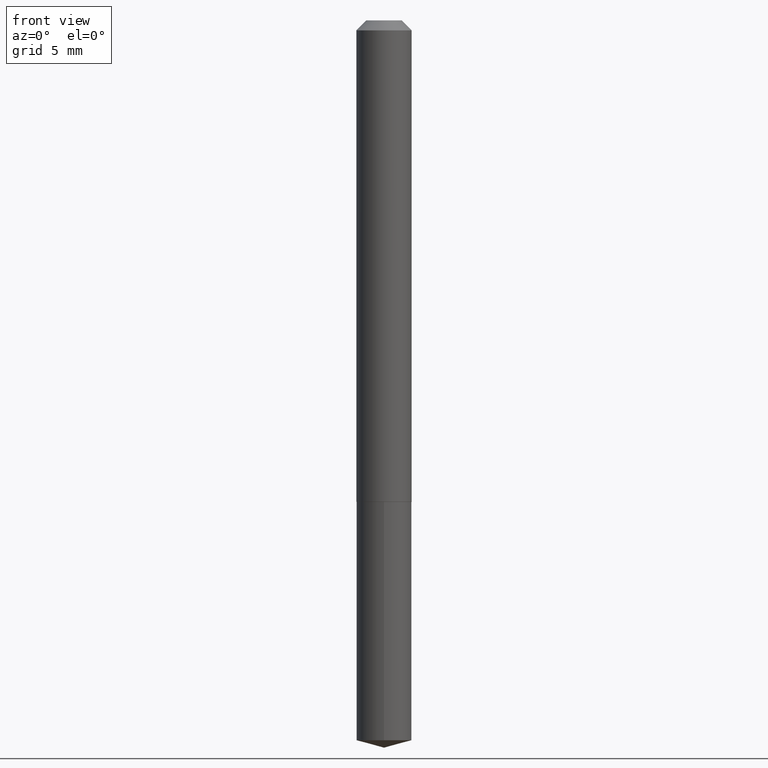
[diagram: clean part render]
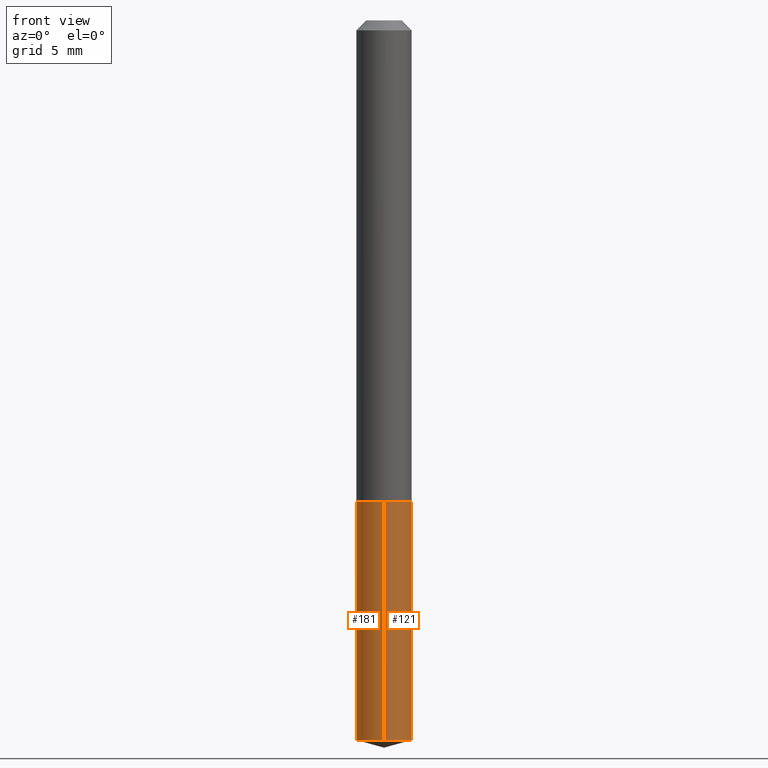
[diagram: same view with one multi-face feature highlighted, each face labeled with its STEP entity id]
A machine part, front view. The highlighted faces form ONE feature: a constant-radius fillet chain: 2 tangent blend faces with common blend radius 2.1996 mm. The faces share edges in the B-rep.
Their STEP definitions:
[1] entity #181 (Cylinder):
#8 = CARTESIAN_POINT ( 'NONE',  ( -6.047245678875748166E-16, -0.08660000000000783738, -2.260295599935465027 ) ) ;
#11 = AXIS2_PLACEMENT_3D ( 'NONE', #312, #340, #140 ) ;
#21 = VERTEX_POINT ( 'NONE', #34 ) ;
#34 = CARTESIAN_POINT ( 'NONE',  ( 6.153300091683016600E-16, 0.08659999999999204445, -2.260295599935465471 ) ) ;
#36 = CARTESIAN_POINT ( 'NONE',  ( -6.047245678875935520E-16, -0.08660000000000526998, -1.511799999999999811 ) ) ;
#37 = CARTESIAN_POINT ( 'NONE',  ( -6.047245678875935520E-16, -0.08660000000000526998, -1.511799999999999811 ) ) ;
#45 = AXIS2_PLACEMENT_3D ( 'NONE', #162, #194, #67 ) ;
#46 = DIRECTION ( 'NONE',  ( -2.445402356682457079E-29, 3.491576498313053365E-15, 1.000000000000000000 ) ) ;
#67 = DIRECTION ( 'NONE',  ( -6.982962677686265922E-15, -1.000000000000000000, 3.154558884138872662E-15 ) ) ;
#75 = ORIENTED_EDGE ( 'NONE', *, *, #151, .T. ) ;
#104 = LINE ( 'NONE', #334, #283 ) ;
#106 = VERTEX_POINT ( 'NONE', #36 ) ;
#116 = ORIENTED_EDGE ( 'NONE', *, *, #204, .F. ) ;
#130 = CIRCLE ( 'NONE', #374, 0.08659999999999998255 ) ;
#138 = ORIENTED_EDGE ( 'NONE', *, *, #331, .T. ) ;
#140 = DIRECTION ( 'NONE',  ( -6.982962677686265922E-15, -1.000000000000000000, 3.154558884138872662E-15 ) ) ;
#150 = VERTEX_POINT ( 'NONE', #197 ) ;
#151 = EDGE_CURVE ( 'NONE', #185, #106, #195, .T. ) ;
#162 = CARTESIAN_POINT ( 'NONE',  ( 3.697059741190689517E-29, -5.278421488063067239E-15, -1.511800000000000033 ) ) ;
#172 = ORIENTED_EDGE ( 'NONE', *, *, #309, .F. ) ;
#181 = ADVANCED_FACE ( 'NONE', ( #247 ), #363, .T. ) ;
#185 = VERTEX_POINT ( 'NONE', #8 ) ;
#194 = DIRECTION ( 'NONE',  ( -2.445402356682457079E-29, 3.491576498313053365E-15, 1.000000000000000000 ) ) ;
#195 = LINE ( 'NONE', #37, #304 ) ;
#197 = CARTESIAN_POINT ( 'NONE',  ( 6.153300091683017586E-16, 0.08659999999999469511, -1.511800000000000255 ) ) ;
#204 = EDGE_CURVE ( 'NONE', #21, #150, #104, .T. ) ;
#232 = DIRECTION ( 'NONE',  ( -6.982962677686265922E-15, -1.000000000000000000, 3.154558884138872662E-15 ) ) ;
#247 = FACE_OUTER_BOUND ( 'NONE', #251, .T. ) ;
#251 = EDGE_LOOP ( 'NONE', ( #116, #138, #75, #172 ) ) ;
#283 = VECTOR ( 'NONE', #332, 39.37007874015748143 ) ;
#304 = VECTOR ( 'NONE', #337, 39.37007874015748143 ) ;
#309 = EDGE_CURVE ( 'NONE', #150, #106, #379, .T. ) ;
#312 = CARTESIAN_POINT ( 'NONE',  ( 3.697059741190689517E-29, -5.278421488063067239E-15, -1.511800000000000033 ) ) ;
#331 = EDGE_CURVE ( 'NONE', #21, #185, #130, .T. ) ;
#332 = DIRECTION ( 'NONE',  ( -2.445402356682457359E-29, 3.491576498313053365E-15, 1.000000000000000000 ) ) ;
#334 = CARTESIAN_POINT ( 'NONE',  ( 6.153300091682836148E-16, 0.08659999999999470899, -1.511800000000000255 ) ) ;
#337 = DIRECTION ( 'NONE',  ( -2.445402356682457359E-29, 3.491576498313053365E-15, 1.000000000000000000 ) ) ;
#340 = DIRECTION ( 'NONE',  ( -2.445402356682457079E-29, 3.491576498313053365E-15, 1.000000000000000000 ) ) ;
#363 = CYLINDRICAL_SURFACE ( 'NONE', #45, 0.08659999999999998255 ) ;
#374 = AXIS2_PLACEMENT_3D ( 'NONE', #382, #46, #232 ) ;
#379 = CIRCLE ( 'NONE', #11, 0.08659999999999998255 ) ;
#382 = CARTESIAN_POINT ( 'NONE',  ( 5.527432645239326200E-29, -7.891851133888467011E-15, -2.260295599935465471 ) ) ;
[2] entity #121 (Cylinder):
#8 = CARTESIAN_POINT ( 'NONE',  ( -6.047245678875748166E-16, -0.08660000000000783738, -2.260295599935465027 ) ) ;
#21 = VERTEX_POINT ( 'NONE', #34 ) ;
#34 = CARTESIAN_POINT ( 'NONE',  ( 6.153300091683016600E-16, 0.08659999999999204445, -2.260295599935465471 ) ) ;
#35 = AXIS2_PLACEMENT_3D ( 'NONE', #284, #343, #74 ) ;
#36 = CARTESIAN_POINT ( 'NONE',  ( -6.047245678875935520E-16, -0.08660000000000526998, -1.511799999999999811 ) ) ;
#37 = CARTESIAN_POINT ( 'NONE',  ( -6.047245678875935520E-16, -0.08660000000000526998, -1.511799999999999811 ) ) ;
#44 = DIRECTION ( 'NONE',  ( -2.445402356682457079E-29, 3.491576498313053365E-15, 1.000000000000000000 ) ) ;
#57 = ORIENTED_EDGE ( 'NONE', *, *, #335, .F. ) ;
#61 = CIRCLE ( 'NONE', #202, 0.08659999999999998255 ) ;
#74 = DIRECTION ( 'NONE',  ( -6.982962677686265922E-15, -1.000000000000000000, 3.154558884138872662E-15 ) ) ;
#80 = CIRCLE ( 'NONE', #35, 0.08659999999999998255 ) ;
#89 = CARTESIAN_POINT ( 'NONE',  ( 3.697059741190689517E-29, -5.278421488063067239E-15, -1.511800000000000033 ) ) ;
#104 = LINE ( 'NONE', #334, #283 ) ;
#106 = VERTEX_POINT ( 'NONE', #36 ) ;
#115 = ORIENTED_EDGE ( 'NONE', *, *, #151, .F. ) ;
#121 = ADVANCED_FACE ( 'NONE', ( #153 ), #272, .T. ) ;
#124 = ORIENTED_EDGE ( 'NONE', *, *, #204, .T. ) ;
#150 = VERTEX_POINT ( 'NONE', #197 ) ;
#151 = EDGE_CURVE ( 'NONE', #185, #106, #195, .T. ) ;
#153 = FACE_OUTER_BOUND ( 'NONE', #381, .T. ) ;
#168 = DIRECTION ( 'NONE',  ( -6.982962677686265922E-15, -1.000000000000000000, 3.154558884138872662E-15 ) ) ;
#184 = AXIS2_PLACEMENT_3D ( 'NONE', #89, #268, #390 ) ;
#185 = VERTEX_POINT ( 'NONE', #8 ) ;
#195 = LINE ( 'NONE', #37, #304 ) ;
#197 = CARTESIAN_POINT ( 'NONE',  ( 6.153300091683017586E-16, 0.08659999999999469511, -1.511800000000000255 ) ) ;
#202 = AXIS2_PLACEMENT_3D ( 'NONE', #225, #44, #168 ) ;
#204 = EDGE_CURVE ( 'NONE', #21, #150, #104, .T. ) ;
#225 = CARTESIAN_POINT ( 'NONE',  ( 5.527432645239326200E-29, -7.891851133888467011E-15, -2.260295599935465471 ) ) ;
#229 = ORIENTED_EDGE ( 'NONE', *, *, #279, .T. ) ;
#268 = DIRECTION ( 'NONE',  ( -2.445402356682457079E-29, 3.491576498313053365E-15, 1.000000000000000000 ) ) ;
#272 = CYLINDRICAL_SURFACE ( 'NONE', #184, 0.08659999999999998255 ) ;
#279 = EDGE_CURVE ( 'NONE', #185, #21, #61, .T. ) ;
#283 = VECTOR ( 'NONE', #332, 39.37007874015748143 ) ;
#284 = CARTESIAN_POINT ( 'NONE',  ( 3.697059741190689517E-29, -5.278421488063067239E-15, -1.511800000000000033 ) ) ;
#304 = VECTOR ( 'NONE', #337, 39.37007874015748143 ) ;
#332 = DIRECTION ( 'NONE',  ( -2.445402356682457359E-29, 3.491576498313053365E-15, 1.000000000000000000 ) ) ;
#334 = CARTESIAN_POINT ( 'NONE',  ( 6.153300091682836148E-16, 0.08659999999999470899, -1.511800000000000255 ) ) ;
#335 = EDGE_CURVE ( 'NONE', #106, #150, #80, .T. ) ;
#337 = DIRECTION ( 'NONE',  ( -2.445402356682457359E-29, 3.491576498313053365E-15, 1.000000000000000000 ) ) ;
#343 = DIRECTION ( 'NONE',  ( -2.445402356682457079E-29, 3.491576498313053365E-15, 1.000000000000000000 ) ) ;
#381 = EDGE_LOOP ( 'NONE', ( #229, #124, #57, #115 ) ) ;
#390 = DIRECTION ( 'NONE',  ( -6.982962677686265922E-15, -1.000000000000000000, 3.154558884138872662E-15 ) ) ;